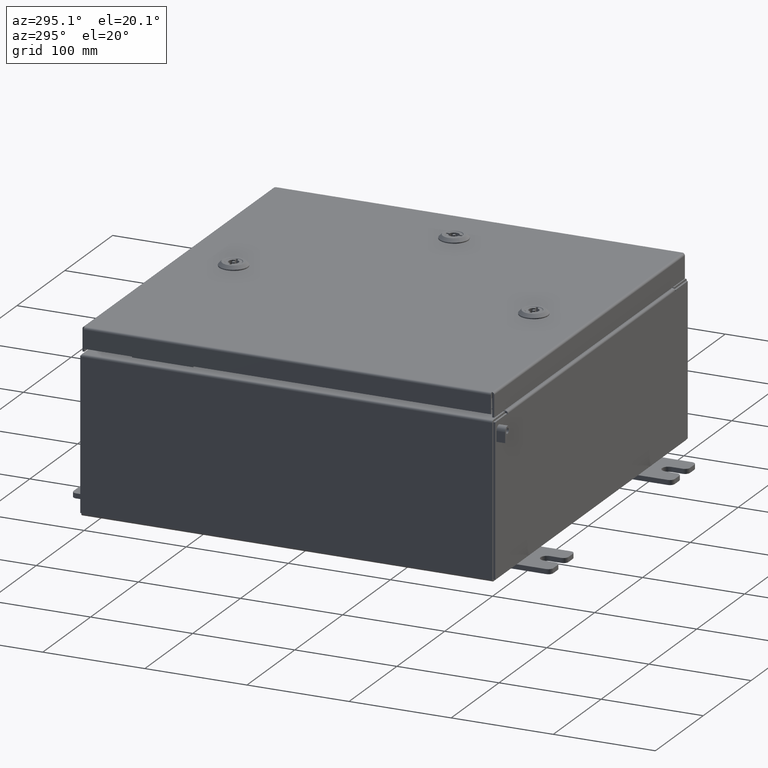
[diagram: clean part render]
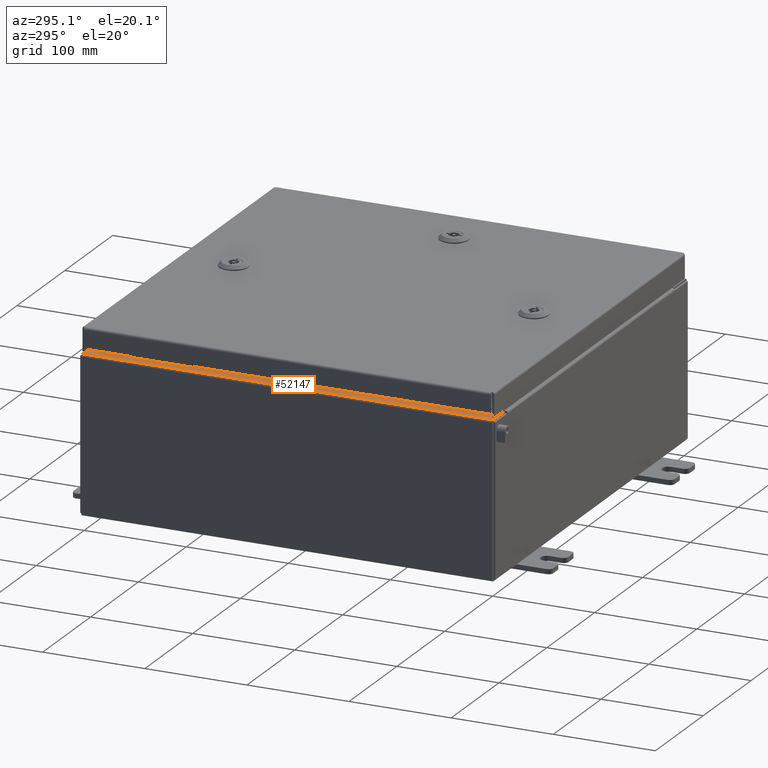
[diagram: same view with one face highlighted and labeled with its STEP entity id]
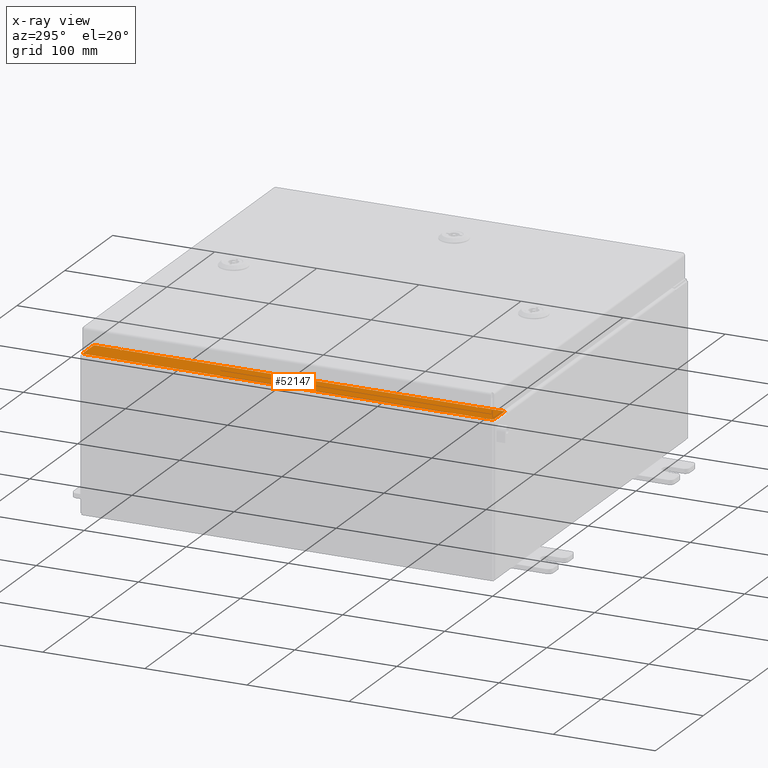
[diagram: x-ray of the same camera — body ghosted, the highlighted face saturated]
A machine part, auxiliary view. The second image highlights one B-rep face of the part: STEP entity #52147.
The next image is the same camera in x-ray: the body ghosted, the highlighted face saturated — about 0% of this face is hidden behind the body in this view.
In plain terms, the highlighted planar face has unit normal (0, 0, -1).
Its self-contained STEP definition (entity closure, byte-faithful):
#471 = ORIENTED_EDGE ( 'NONE', *, *, #17255, .T. ) ;
#1672 = DIRECTION ( 'NONE',  ( -1.000000000000000000, 0.0000000000000000000, -7.840482146637899600E-015 ) ) ;
#3589 = CARTESIAN_POINT ( 'NONE',  ( -6.962700000000021200, -6.843750000000000000, 5.925300000000008000 ) ) ;
#4904 = CARTESIAN_POINT ( 'NONE',  ( -7.000050000000021200, -6.881100000000000000, 5.925300000000008000 ) ) ;
#6596 = VERTEX_POINT ( 'NONE', #22533 ) ;
#6767 = EDGE_CURVE ( 'NONE', #35689, #58497, #34746, .T. ) ;
#8134 = EDGE_CURVE ( 'NONE', #6596, #16713, #38463, .T. ) ;
#9240 = DIRECTION ( 'NONE',  ( 1.000000000000000000, 0.0000000000000000000, 7.840482146637899600E-015 ) ) ;
#10400 = LINE ( 'NONE', #3589, #34611 ) ;
#11006 = CARTESIAN_POINT ( 'NONE',  ( -7.000050000000021200, -6.843750000000000000, 5.925300000000007100 ) ) ;
#11504 = LINE ( 'NONE', #32612, #61426 ) ;
#11855 = VERTEX_POINT ( 'NONE', #52891 ) ;
#13356 = ORIENTED_EDGE ( 'NONE', *, *, #6767, .F. ) ;
#14723 = EDGE_CURVE ( 'NONE', #49839, #43662, #29782, .T. ) ;
#15232 = CARTESIAN_POINT ( 'NONE',  ( -6.949700000000021300, 7.925299999999998200, 5.925300000000007100 ) ) ;
#16713 = VERTEX_POINT ( 'NONE', #58046 ) ;
#16751 = VECTOR ( 'NONE', #38727, 39.37007874015748100 ) ;
#17255 = EDGE_CURVE ( 'NONE', #21735, #38376, #11504, .T. ) ;
#18240 = EDGE_CURVE ( 'NONE', #36179, #30319, #48500, .T. ) ;
#18268 = DIRECTION ( 'NONE',  ( -4.822655666717293700E-031, 1.000000000000000000, -3.781194565427903600E-045 ) ) ;
#20068 = ORIENTED_EDGE ( 'NONE', *, *, #46968, .F. ) ;
#20279 = DIRECTION ( 'NONE',  ( -7.840482146637899600E-015, -0.0000000000000000000, 1.000000000000000000 ) ) ;
#20303 = LINE ( 'NONE', #52851, #44538 ) ;
#20800 = VECTOR ( 'NONE', #22191, 39.37007874015748100 ) ;
#21266 = CARTESIAN_POINT ( 'NONE',  ( -6.949700000000021300, -3.351601008698505000E-030, 5.925300000000007100 ) ) ;
#21590 = AXIS2_PLACEMENT_3D ( 'NONE', #54766, #30609, #1672 ) ;
#21735 = VERTEX_POINT ( 'NONE', #60200 ) ;
#22191 = DIRECTION ( 'NONE',  ( -1.000000000000000000, -7.721746602346999800E-032, -7.840482146637899600E-015 ) ) ;
#22533 = CARTESIAN_POINT ( 'NONE',  ( -7.000050000000021200, 6.881099999999996400, 5.925300000000007100 ) ) ;
#23777 = CARTESIAN_POINT ( 'NONE',  ( -7.000050000000021200, 6.843749999999996400, 5.925300000000008000 ) ) ;
#25796 = PLANE ( 'NONE',  #21590 ) ;
#26108 = EDGE_CURVE ( 'NONE', #58497, #31850, #10400, .T. ) ;
#26816 = CARTESIAN_POINT ( 'NONE',  ( -7.000050000000021200, 6.862424999999996400, 5.925300000000008000 ) ) ;
#27526 = CIRCLE ( 'NONE', #51993, 0.01867500000000058700 ) ;
#27690 = DIRECTION ( 'NONE',  ( -1.000000000000000000, 0.0000000000000000000, 0.0000000000000000000 ) ) ;
#29313 = VECTOR ( 'NONE', #62467, 39.37007874015748100 ) ;
#29579 = ORIENTED_EDGE ( 'NONE', *, *, #51961, .F. ) ;
#29782 = LINE ( 'NONE', #21266, #39622 ) ;
#30319 = VERTEX_POINT ( 'NONE', #51538 ) ;
#30376 = AXIS2_PLACEMENT_3D ( 'NONE', #26816, #60659, #31672 ) ;
#30609 = DIRECTION ( 'NONE',  ( 7.840482146637899600E-015, 0.0000000000000000000, -1.000000000000000000 ) ) ;
#30775 = ORIENTED_EDGE ( 'NONE', *, *, #8134, .F. ) ;
#31077 = EDGE_CURVE ( 'NONE', #43662, #30319, #33622, .T. ) ;
#31672 = DIRECTION ( 'NONE',  ( 1.000000000000000000, 0.0000000000000000000, 0.0000000000000000000 ) ) ;
#31850 = VERTEX_POINT ( 'NONE', #11006 ) ;
#32612 = CARTESIAN_POINT ( 'NONE',  ( -6.949700000000021300, -3.351601008698505000E-030, 5.925300000000007100 ) ) ;
#32780 = CARTESIAN_POINT ( 'NONE',  ( -6.949700000000021300, 6.881099999999996400, 5.925300000000007100 ) ) ;
#32840 = DIRECTION ( 'NONE',  ( -0.0000000000000000000, -1.000000000000000000, -0.0000000000000000000 ) ) ;
#33529 = ORIENTED_EDGE ( 'NONE', *, *, #18240, .F. ) ;
#33585 = ORIENTED_EDGE ( 'NONE', *, *, #26108, .F. ) ;
#33622 = LINE ( 'NONE', #51169, #20800 ) ;
#34611 = VECTOR ( 'NONE', #27690, 39.37007874015748100 ) ;
#34746 = LINE ( 'NONE', #37711, #46138 ) ;
#35607 = VECTOR ( 'NONE', #45166, 39.37007874015748100 ) ;
#35689 = VERTEX_POINT ( 'NONE', #59335 ) ;
#36179 = VERTEX_POINT ( 'NONE', #52899 ) ;
#36806 = EDGE_CURVE ( 'NONE', #11855, #38376, #58300, .T. ) ;
#37165 = DIRECTION ( 'NONE',  ( -1.000000000000000000, 0.0000000000000000000, 0.0000000000000000000 ) ) ;
#37275 = EDGE_CURVE ( 'NONE', #49839, #6596, #54528, .T. ) ;
#37711 = CARTESIAN_POINT ( 'NONE',  ( -6.962700000000021200, 6.843750000000000000, 5.925300000000008000 ) ) ;
#38376 = VERTEX_POINT ( 'NONE', #48495 ) ;
#38463 = CIRCLE ( 'NONE', #30376, 0.01867500000000058700 ) ;
#38727 = DIRECTION ( 'NONE',  ( 1.000000000000000000, -2.170286390200002500E-014, 0.0000000000000000000 ) ) ;
#39065 = ORIENTED_EDGE ( 'NONE', *, *, #36806, .F. ) ;
#39622 = VECTOR ( 'NONE', #50244, 39.37007874015748100 ) ;
#41646 = VECTOR ( 'NONE', #37165, 39.37007874015748100 ) ;
#41994 = ORIENTED_EDGE ( 'NONE', *, *, #46322, .T. ) ;
#43662 = VERTEX_POINT ( 'NONE', #15232 ) ;
#43866 = ORIENTED_EDGE ( 'NONE', *, *, #14723, .T. ) ;
#44538 = VECTOR ( 'NONE', #9240, 39.37007874015748100 ) ;
#45166 = DIRECTION ( 'NONE',  ( 6.893992640440775600E-017, 1.000000000000000000, 5.405222621642897500E-031 ) ) ;
#46138 = VECTOR ( 'NONE', #32840, 39.37007874015748100 ) ;
#46322 = EDGE_CURVE ( 'NONE', #36179, #21735, #20303, .T. ) ;
#46932 = CARTESIAN_POINT ( 'NONE',  ( -6.949700000000021300, 6.881099999999996400, 5.925300000000008000 ) ) ;
#46968 = EDGE_CURVE ( 'NONE', #16713, #35689, #56618, .T. ) ;
#48495 = CARTESIAN_POINT ( 'NONE',  ( -6.949700000000021300, -6.881100000000000000, 5.925300000000007100 ) ) ;
#48500 = LINE ( 'NONE', #54484, #35607 ) ;
#49212 = EDGE_LOOP ( 'NONE', ( #62193, #43866, #51303, #33529, #41994, #471, #39065, #29579, #33585, #13356, #20068, #30775 ) ) ;
#49260 = CARTESIAN_POINT ( 'NONE',  ( -7.000050000000021200, -6.862424999999999100, 5.925300000000008000 ) ) ;
#49839 = VERTEX_POINT ( 'NONE', #32780 ) ;
#50244 = DIRECTION ( 'NONE',  ( -4.822655666717293700E-031, 1.000000000000000000, -3.781194565427903600E-045 ) ) ;
#51169 = CARTESIAN_POINT ( 'NONE',  ( -4.671802251948561000E-014, 7.925299999999998200, 5.925300000000061300 ) ) ;
#51303 = ORIENTED_EDGE ( 'NONE', *, *, #31077, .T. ) ;
#51538 = CARTESIAN_POINT ( 'NONE',  ( -7.912300000000022300, 7.925299999999998200, 5.925299999999999100 ) ) ;
#51961 = EDGE_CURVE ( 'NONE', #31850, #11855, #27526, .T. ) ;
#51993 = AXIS2_PLACEMENT_3D ( 'NONE', #49260, #20279, #54120 ) ;
#52147 = ADVANCED_FACE ( 'NONE', ( #60071 ), #25796, .F. ) ;
#52851 = CARTESIAN_POINT ( 'NONE',  ( -4.671802251948561000E-014, -7.925300000000000000, 5.925300000000061300 ) ) ;
#52891 = CARTESIAN_POINT ( 'NONE',  ( -7.000050000000021200, -6.881100000000000000, 5.925300000000007100 ) ) ;
#52899 = CARTESIAN_POINT ( 'NONE',  ( -7.912300000000022300, -7.925300000000000000, 5.925299999999999100 ) ) ;
#53949 = CARTESIAN_POINT ( 'NONE',  ( -6.962700000000021200, -6.843750000000000000, 5.925300000000008000 ) ) ;
#54120 = DIRECTION ( 'NONE',  ( 1.000000000000000000, 0.0000000000000000000, 0.0000000000000000000 ) ) ;
#54484 = CARTESIAN_POINT ( 'NONE',  ( -7.912300000000021400, 7.925299999999998200, 5.925299999999999100 ) ) ;
#54528 = LINE ( 'NONE', #46932, #41646 ) ;
#54766 = CARTESIAN_POINT ( 'NONE',  ( -4.671802251948561000E-014, 0.0000000000000000000, 5.925300000000061300 ) ) ;
#56618 = LINE ( 'NONE', #23777, #29313 ) ;
#58046 = CARTESIAN_POINT ( 'NONE',  ( -7.000050000000021200, 6.843749999999996400, 5.925300000000007100 ) ) ;
#58300 = LINE ( 'NONE', #4904, #16751 ) ;
#58497 = VERTEX_POINT ( 'NONE', #53949 ) ;
#59335 = CARTESIAN_POINT ( 'NONE',  ( -6.962700000000021200, 6.843749999999996400, 5.925300000000008000 ) ) ;
#60071 = FACE_OUTER_BOUND ( 'NONE', #49212, .T. ) ;
#60200 = CARTESIAN_POINT ( 'NONE',  ( -6.949700000000021300, -7.925300000000000000, 5.925300000000007100 ) ) ;
#60659 = DIRECTION ( 'NONE',  ( -7.840482146637899600E-015, -0.0000000000000000000, 1.000000000000000000 ) ) ;
#61426 = VECTOR ( 'NONE', #18268, 39.37007874015748100 ) ;
#62193 = ORIENTED_EDGE ( 'NONE', *, *, #37275, .F. ) ;
#62467 = DIRECTION ( 'NONE',  ( 1.000000000000000000, 0.0000000000000000000, 0.0000000000000000000 ) ) ;